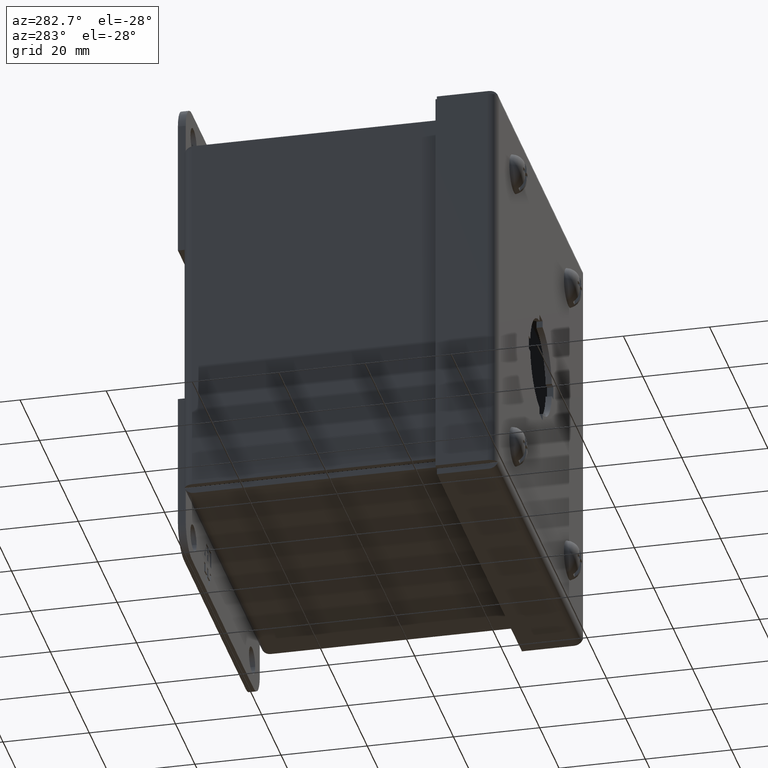
[diagram: clean part render]
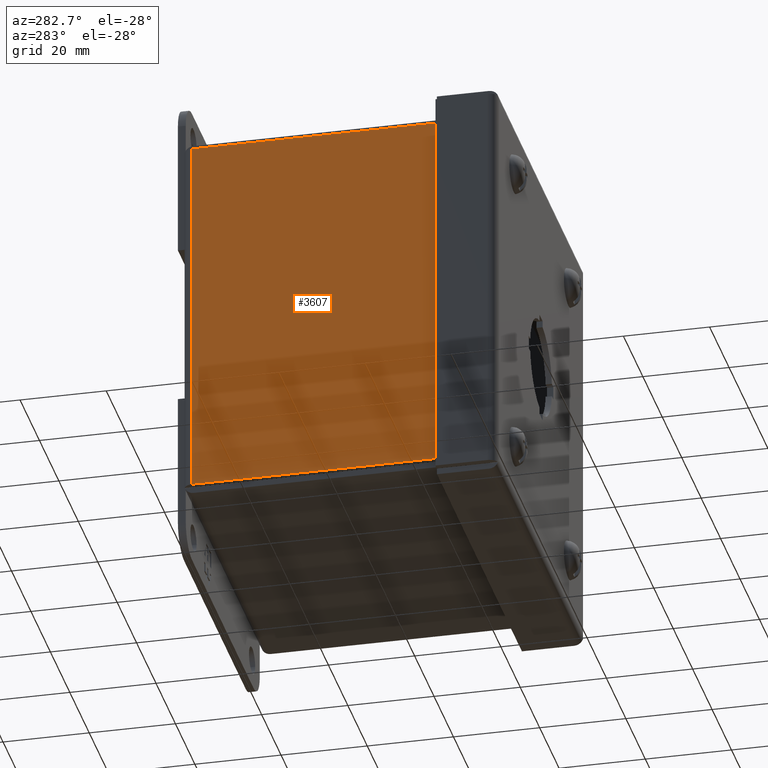
[diagram: same view with one face highlighted and labeled with its STEP entity id]
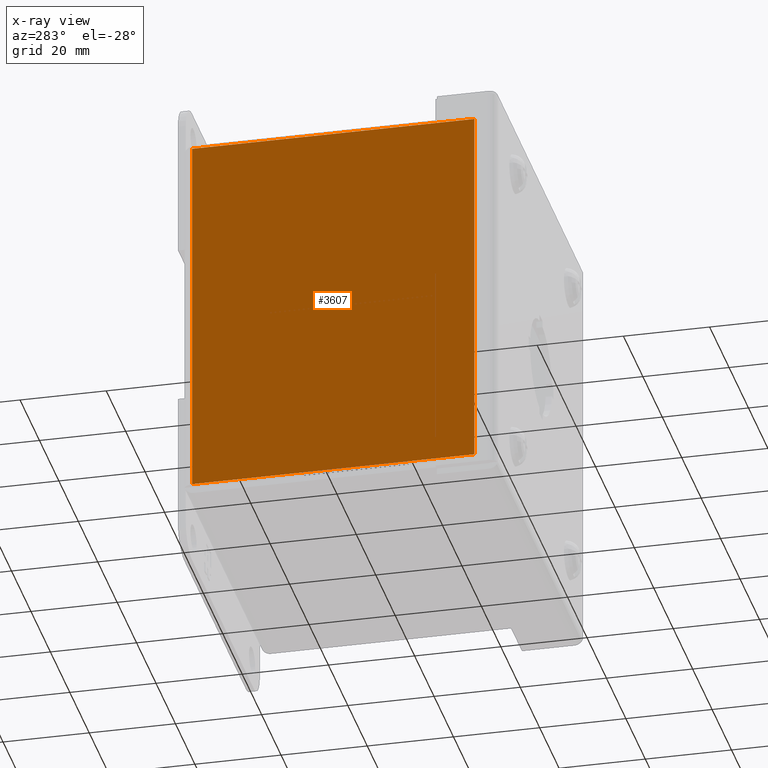
[diagram: x-ray of the same camera — body ghosted, the highlighted face saturated]
A machine part, auxiliary view. The second image highlights one B-rep face of the part: STEP entity #3607.
The next image is the same camera in x-ray: the body ghosted, the highlighted face saturated — about 0% of this face is hidden behind the body in this view.
In plain terms, the highlighted planar face has unit normal (-1, 0, 0).
Its self-contained STEP definition (entity closure, byte-faithful):
#265 = DIRECTION ( 'NONE',  ( -1.159823381873250054E-17, -0.0000000000000000000, -1.000000000000000000 ) ) ;
#797 = CARTESIAN_POINT ( 'NONE',  ( -1.625000000000000222, -2.663999999999999702, -1.692212598425196779 ) ) ;
#1058 = DIRECTION ( 'NONE',  ( -1.000000000000000000, 0.0000000000000000000, 1.159823381873250054E-17 ) ) ;
#1538 = LINE ( 'NONE', #8895, #5760 ) ;
#1760 = EDGE_LOOP ( 'NONE', ( #2048, #4794, #6628, #13510 ) ) ;
#2048 = ORIENTED_EDGE ( 'NONE', *, *, #12838, .F. ) ;
#2582 = VERTEX_POINT ( 'NONE', #6864 ) ;
#3023 = VECTOR ( 'NONE', #3658, 39.37007874015748143 ) ;
#3607 = ADVANCED_FACE ( 'NONE', ( #9785 ), #4472, .T. ) ;
#3658 = DIRECTION ( 'NONE',  ( 0.0000000000000000000, -1.000000000000000000, -0.0000000000000000000 ) ) ;
#4051 = CARTESIAN_POINT ( 'NONE',  ( -1.625000000000000000, 39.37007874015748143, 1.692212598425196779 ) ) ;
#4472 = PLANE ( 'NONE',  #8473 ) ;
#4518 = CARTESIAN_POINT ( 'NONE',  ( -1.625000000000000000, 39.37007874015748143, -1.692212598425196779 ) ) ;
#4594 = CARTESIAN_POINT ( 'NONE',  ( -1.625000000000000000, -0.08600000000000000699, -11.77700000000000102 ) ) ;
#4794 = ORIENTED_EDGE ( 'NONE', *, *, #6843, .T. ) ;
#4813 = CARTESIAN_POINT ( 'NONE',  ( -1.625000000000000000, -0.08599999999999974332, -1.692212598425197001 ) ) ;
#5397 = DIRECTION ( 'NONE',  ( 1.159823381873250054E-17, 0.0000000000000000000, 1.000000000000000000 ) ) ;
#5701 = EDGE_CURVE ( 'NONE', #10775, #9579, #1538, .T. ) ;
#5706 = EDGE_CURVE ( 'NONE', #6880, #9579, #13312, .T. ) ;
#5760 = VECTOR ( 'NONE', #13161, 39.37007874015748143 ) ;
#6628 = ORIENTED_EDGE ( 'NONE', *, *, #5706, .T. ) ;
#6788 = LINE ( 'NONE', #4594, #8443 ) ;
#6843 = EDGE_CURVE ( 'NONE', #2582, #6880, #6788, .T. ) ;
#6864 = CARTESIAN_POINT ( 'NONE',  ( -1.624999999999999778, -0.08599999999999985434, 1.692212598425197001 ) ) ;
#6880 = VERTEX_POINT ( 'NONE', #4813 ) ;
#7505 = CARTESIAN_POINT ( 'NONE',  ( -1.625000000000000000, 0.0000000000000000000, -11.77700000000000102 ) ) ;
#8443 = VECTOR ( 'NONE', #265, 39.37007874015748143 ) ;
#8473 = AXIS2_PLACEMENT_3D ( 'NONE', #7505, #1058, #5397 ) ;
#8578 = DIRECTION ( 'NONE',  ( 0.0000000000000000000, -1.000000000000000000, -0.0000000000000000000 ) ) ;
#8895 = CARTESIAN_POINT ( 'NONE',  ( -1.625000000000000222, -2.663999999999999702, -1.692212598425196779 ) ) ;
#9579 = VERTEX_POINT ( 'NONE', #797 ) ;
#9785 = FACE_OUTER_BOUND ( 'NONE', #1760, .T. ) ;
#10110 = VECTOR ( 'NONE', #8578, 39.37007874015748143 ) ;
#10775 = VERTEX_POINT ( 'NONE', #12523 ) ;
#12523 = CARTESIAN_POINT ( 'NONE',  ( -1.625000000000000222, -2.663999999999999702, 1.692212598425196779 ) ) ;
#12838 = EDGE_CURVE ( 'NONE', #2582, #10775, #14058, .T. ) ;
#13161 = DIRECTION ( 'NONE',  ( -1.159823381873250054E-17, -0.0000000000000000000, -1.000000000000000000 ) ) ;
#13312 = LINE ( 'NONE', #4518, #3023 ) ;
#13510 = ORIENTED_EDGE ( 'NONE', *, *, #5701, .F. ) ;
#14058 = LINE ( 'NONE', #4051, #10110 ) ;